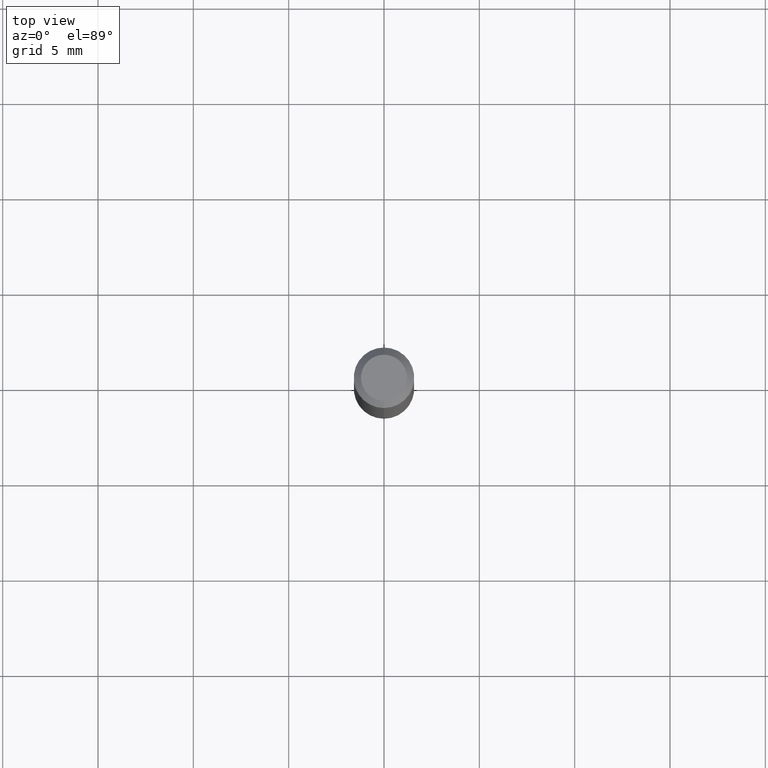
[diagram: clean part render]
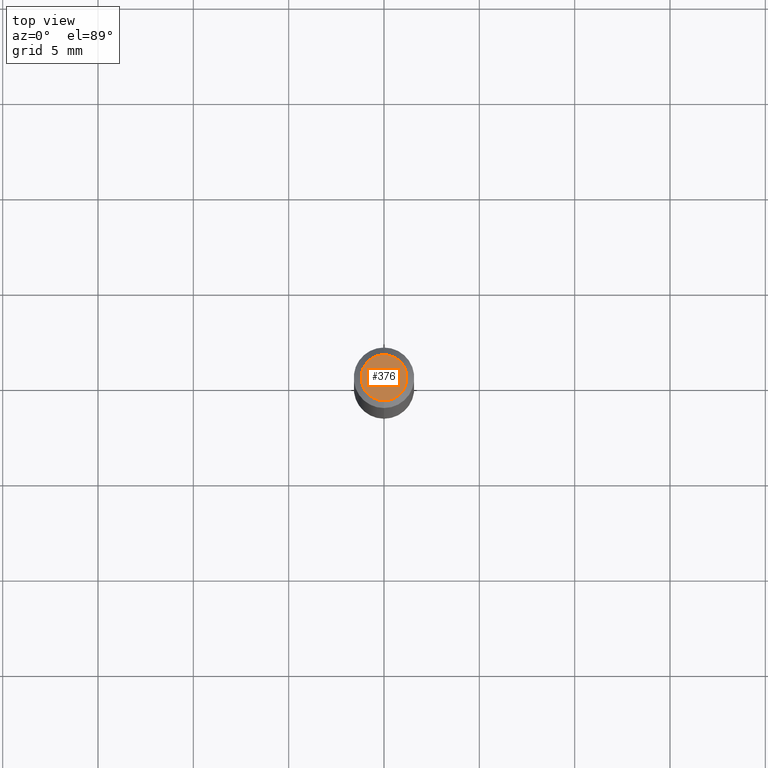
[diagram: same view with one face highlighted and labeled with its STEP entity id]
A machine part, top view. The second image highlights one B-rep face of the part: STEP entity #376.
In plain terms, the highlighted planar face has unit normal (0, -0, -1).
Its self-contained STEP definition (entity closure, byte-faithful):
#2 = EDGE_CURVE ( 'NONE', #100, #91, #437, .T. ) ;
#11 = DIRECTION ( 'NONE',  ( 2.445424704910742757E-29, -3.491544494378165710E-15, -1.000000000000000000 ) ) ;
#25 = DIRECTION ( 'NONE',  ( -2.445424704910742757E-29, 3.491544494378166105E-15, 1.000000000000000000 ) ) ;
#29 = CARTESIAN_POINT ( 'NONE',  ( 8.024513167763535209E-45, -1.145729194389263132E-30, -3.281439478242462597E-16 ) ) ;
#31 = CARTESIAN_POINT ( 'NONE',  ( 3.840629472727447874E-16, 0.04749999999999999362, -4.939923113072091241E-16 ) ) ;
#57 = FACE_OUTER_BOUND ( 'NONE', #216, .T. ) ;
#91 = VERTEX_POINT ( 'NONE', #270 ) ;
#93 = CIRCLE ( 'NONE', #311, 0.04749999999999999362 ) ;
#100 = VERTEX_POINT ( 'NONE', #31 ) ;
#135 = EDGE_CURVE ( 'NONE', #91, #100, #93, .T. ) ;
#203 = DIRECTION ( 'NONE',  ( -6.982962677686266711E-15, -1.000000000000000000, 3.491544494378166499E-15 ) ) ;
#216 = EDGE_LOOP ( 'NONE', ( #390, #221 ) ) ;
#221 = ORIENTED_EDGE ( 'NONE', *, *, #135, .T. ) ;
#226 = AXIS2_PLACEMENT_3D ( 'NONE', #29, #25, #351 ) ;
#230 = CARTESIAN_POINT ( 'NONE',  ( 8.024513167763535209E-45, -1.145729194389263132E-30, -3.281439478242462597E-16 ) ) ;
#231 = DIRECTION ( 'NONE',  ( -2.445424704910742757E-29, 3.491544494378166105E-15, 1.000000000000000000 ) ) ;
#254 = PLANE ( 'NONE',  #347 ) ;
#270 = CARTESIAN_POINT ( 'NONE',  ( -3.773273898774340269E-16, -0.04749999999999999362, -1.622955843412833461E-16 ) ) ;
#290 = CARTESIAN_POINT ( 'NONE',  ( 3.316907271900976096E-16, 0.04749999999999999362, -3.299203373950860189E-16 ) ) ;
#311 = AXIS2_PLACEMENT_3D ( 'NONE', #230, #231, #203 ) ;
#343 = DIRECTION ( 'NONE',  ( 6.982962677686265922E-15, 1.000000000000000000, -3.491544494378165710E-15 ) ) ;
#347 = AXIS2_PLACEMENT_3D ( 'NONE', #290, #11, #343 ) ;
#351 = DIRECTION ( 'NONE',  ( -6.982962677686266711E-15, -1.000000000000000000, 3.491544494378166499E-15 ) ) ;
#376 = ADVANCED_FACE ( 'NONE', ( #57 ), #254, .F. ) ;
#390 = ORIENTED_EDGE ( 'NONE', *, *, #2, .T. ) ;
#437 = CIRCLE ( 'NONE', #226, 0.04749999999999999362 ) ;